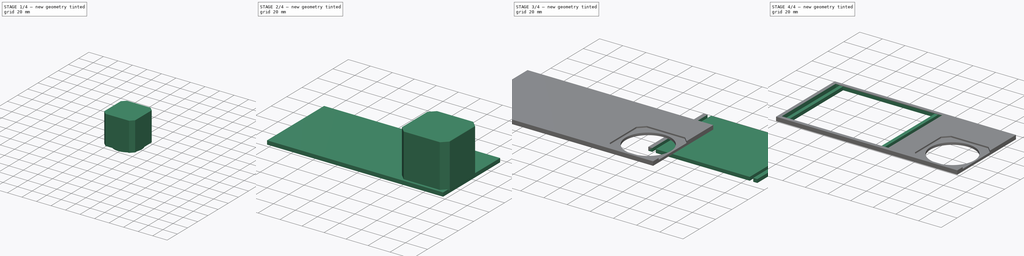
[diagram: build sequence overview — one tinted view per stage of 4, left to right]
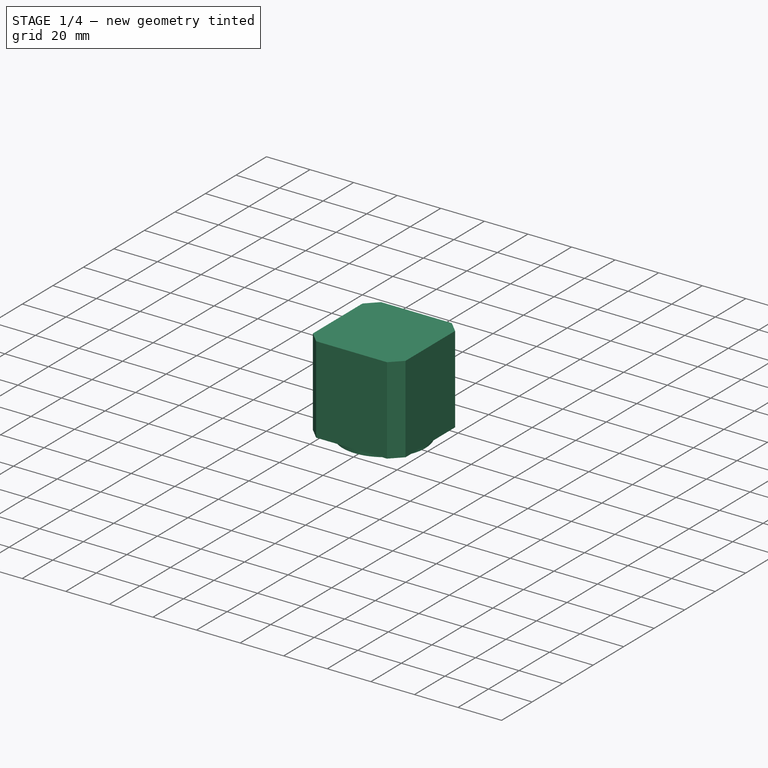
[diagram: stage 1 of 4 — iso view after this stage's code; geometry added in this stage tinted green]
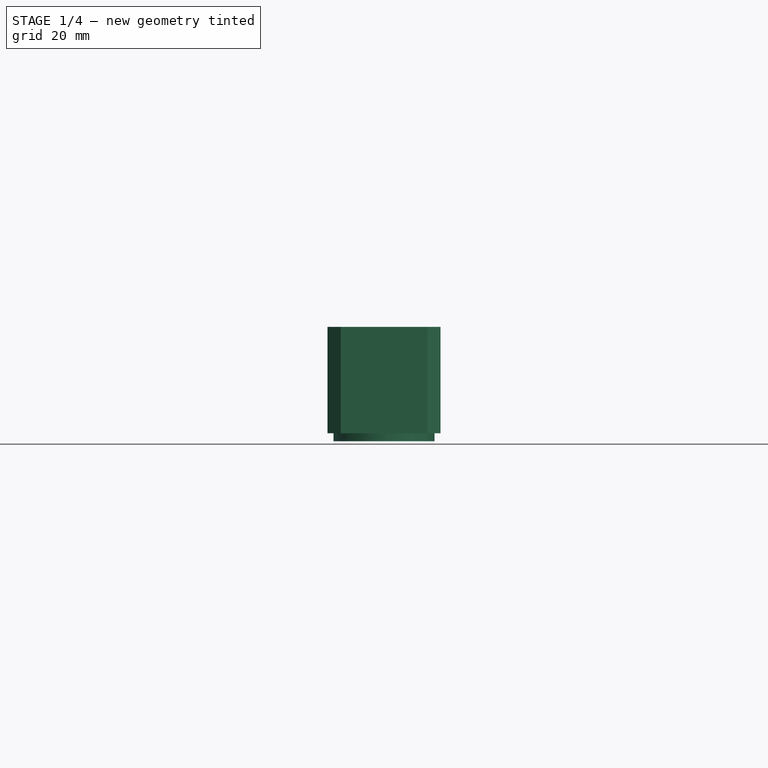
[diagram: stage 1 of 4 — front view after this stage's code; geometry added in this stage tinted green]
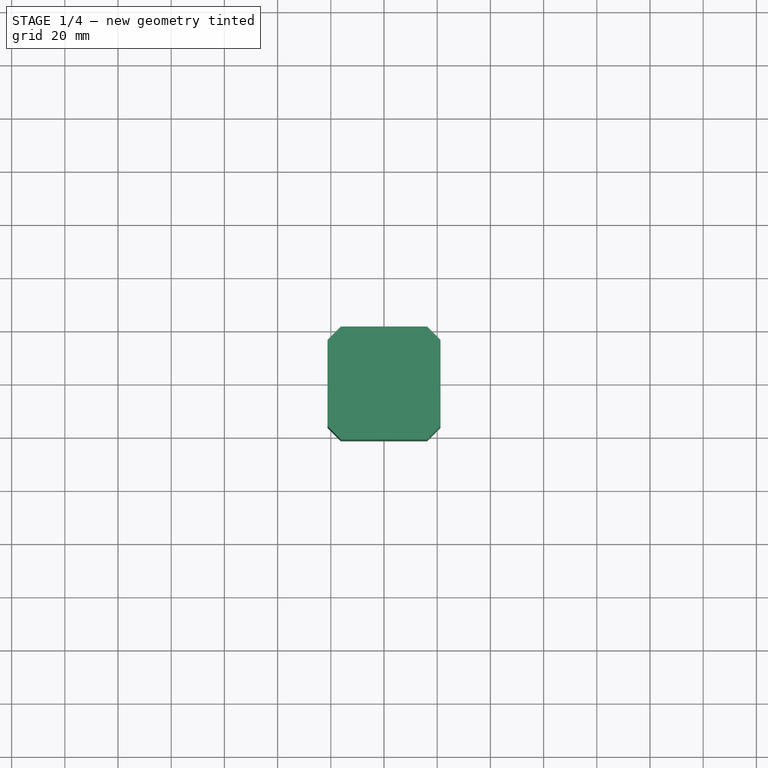
[diagram: stage 1 of 4 — top view after this stage's code; geometry added in this stage tinted green]
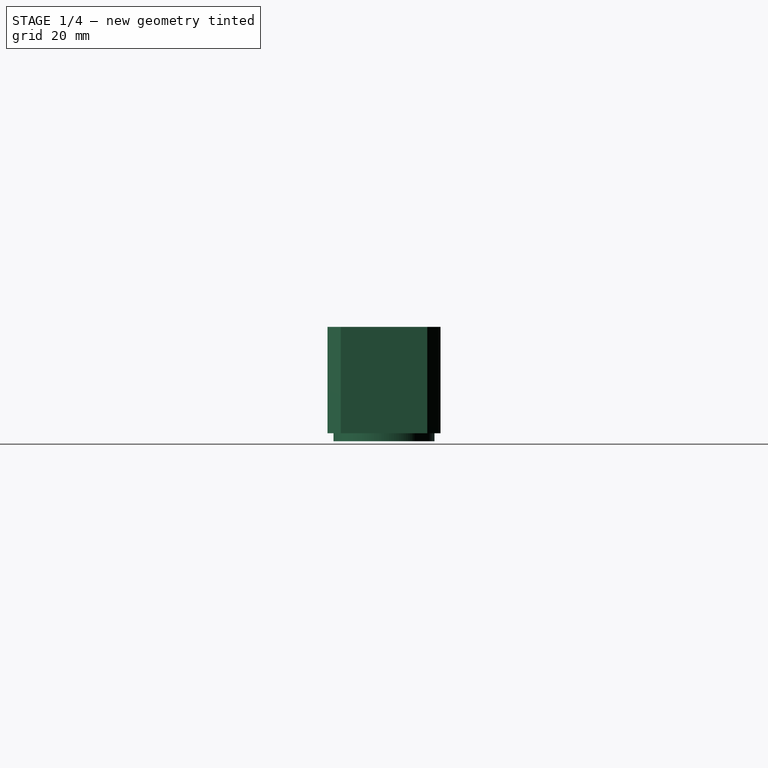
[diagram: stage 1 of 4 — right view after this stage's code; geometry added in this stage tinted green]
FCSTD DOCUMENT  (FreeCAD 0.16R6700 (Git))
Label: OctoprintBed
License: CreativeCommons Attribution-ShareAlike
LicenseURL: http://creativecommons.org/licenses/by-sa/4.0/
objects: Sketcher::SketchObject×3, Part::Box×2, Part::MultiFuse×2, PartDesign::Pad×2, Part::Cut×2, Part::Extrusion×1, Part::Offset×1
note: 15 computed .brp shape members not serialized (recipe doc carries the construction recipe); baked Part::Feature solids carry a one-line shape summary decoded from their .brp

FEATURE [Sketcher::SketchObject] Sketch001
  Placement = pos=(0,0,2.5) rot=(0,0,1;0rad)
  sketch-geometry (8):
    g0: LineSegment StartX=-21.25 StartY=-16.25 StartZ=0 EndX=-21.25 EndY=16.25 EndZ=0
    g1: LineSegment StartX=-21.25 StartY=16.25 StartZ=0 EndX=-16.25 EndY=21.25 EndZ=0
    g2: LineSegment StartX=-16.25 StartY=21.25 StartZ=0 EndX=16.25 EndY=21.25 EndZ=0
    g3: LineSegment StartX=16.25 StartY=21.25 StartZ=0 EndX=21.25 EndY=16.25 EndZ=0
    g4: LineSegment StartX=21.25 StartY=16.25 StartZ=0 EndX=21.25 EndY=-16.25 EndZ=0
    g5: LineSegment StartX=21.25 StartY=-16.25 StartZ=0 EndX=16.25 EndY=-21.25 EndZ=0
    g6: LineSegment StartX=16.25 StartY=-21.25 StartZ=0 EndX=-16.25 EndY=-21.25 EndZ=0
    g7: LineSegment StartX=-16.25 StartY=-21.25 StartZ=0 EndX=-21.25 EndY=-16.25 EndZ=0
  constraints (26):
    c: Vertical(g0)
    c: Coincident(g0,g1)
    c: Coincident(g1,g2)
    c: Horizontal(g2)
    c: Coincident(g2,g3)
    c: Coincident(g3,g4)
    c: Vertical(g4)
    c: Coincident(g4,g5)
    c: Coincident(g5,g6)
    c: Horizontal(g6)
    c: Coincident(g6,g7)
    c: Coincident(g7,g0)
    c: Equal(g1,g3)
    c: Equal(g3,g5)
    c: Equal(g5,g7)
    c: Equal(g0,g2)
    c: Equal(g2,g4)
    c: Equal(g4,g6)
    c: Symmetric(g1,g6,g-1)
    c: Symmetric(g0,g3,g-2)
    c: DistanceX(g0,g3) = 42.5
    c: DistanceX(g2,g3) = 5
    c: Equal(g2,g4)
    c: Equal(g4,g0)
    c: Equal(g0,g6)
    c: Angle(g3,g4) = 2.35619
FEATURE [PartDesign::Pad] Pad  label="NEMA 17 Base"
  Length = 40
  Length2 = 100
  Placement = pos=(0,0,2.5) rot=(0,0,1;0rad)
  Sketch = -> Sketch001
  Type = 0
FEATURE [Sketcher::SketchObject] Sketch002
  Placement = pos=(0,0,2.5) rot=(1,0,0;3.14159rad)
  Support = -> Pad [Face9]
  sketch-geometry (1):
    g0: Circle CenterX=0 CenterY=0 CenterZ=0 NormalX=0 NormalY=0 NormalZ=1 Radius=19
  constraints (2):
    c: Coincident(g0,g-1)
    c: Radius(g0) = 19
FEATURE [PartDesign::Pad] Pad001
  Length = 3
  Length2 = 100
  Placement = pos=(0,0,2.5) rot=(0,0,1;0rad)
  Sketch = -> Sketch002
  Type = 0
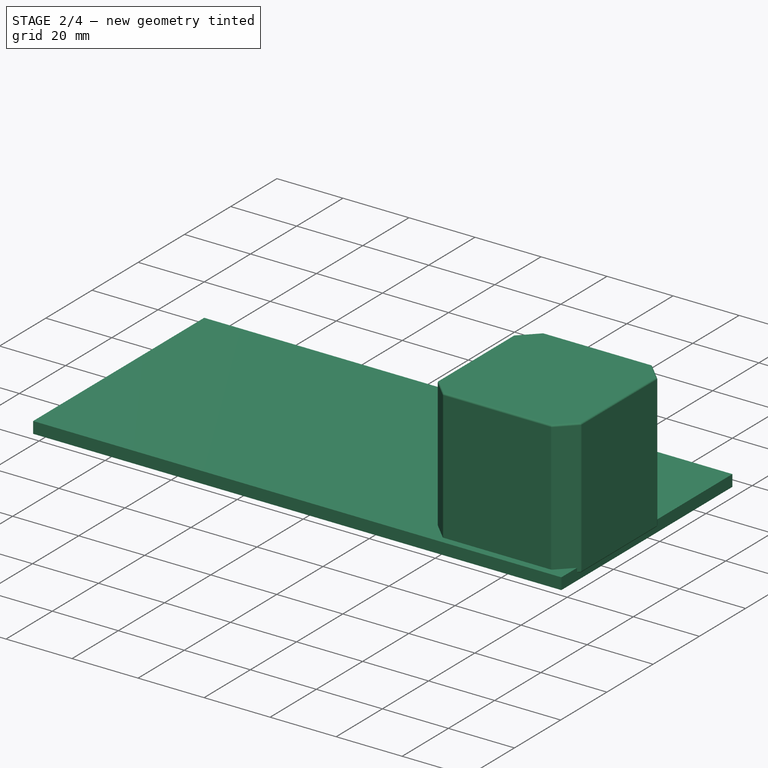
[diagram: stage 2 of 4 — iso view after this stage's code; geometry added in this stage tinted green]
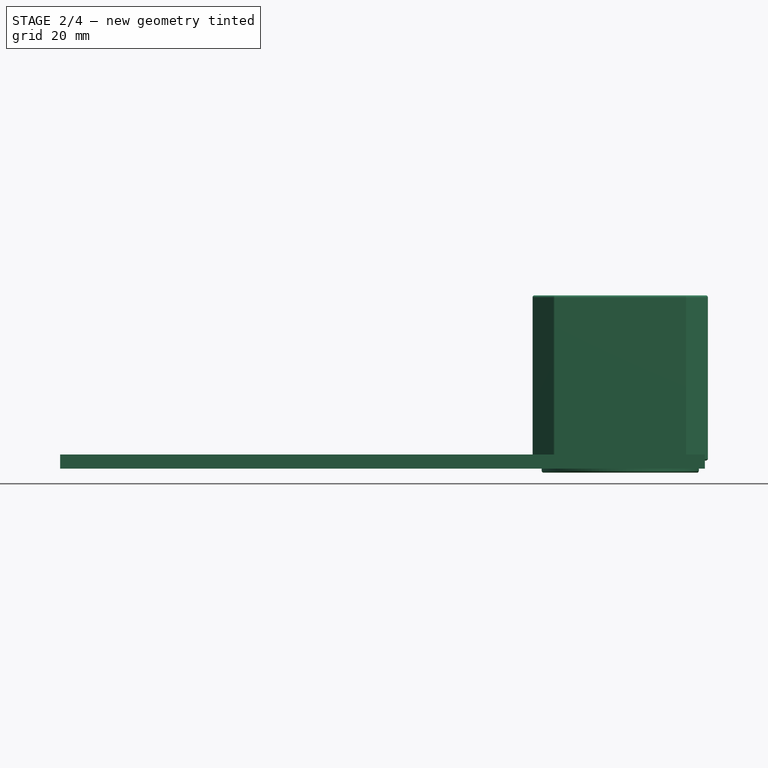
[diagram: stage 2 of 4 — front view after this stage's code; geometry added in this stage tinted green]
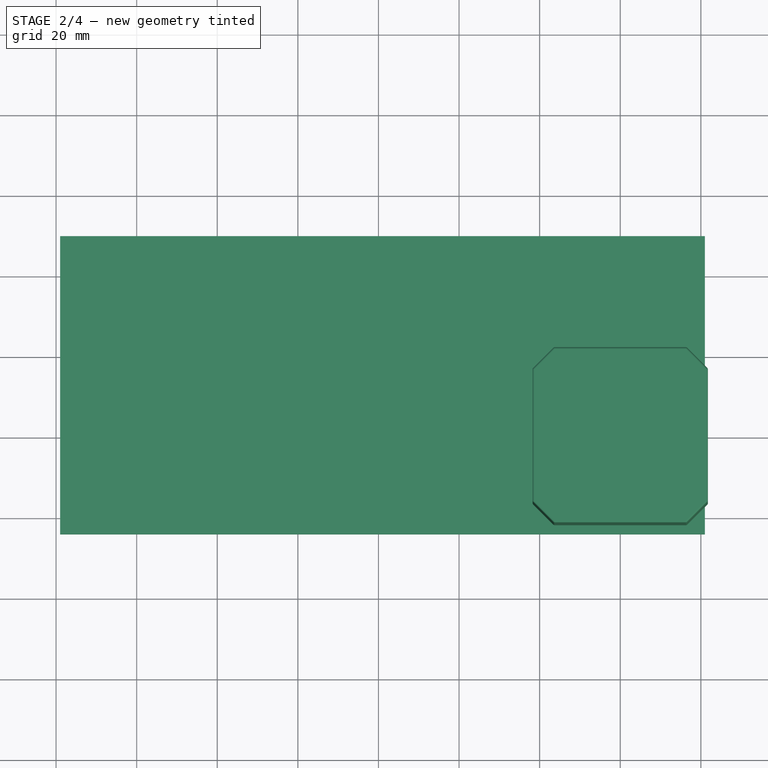
[diagram: stage 2 of 4 — top view after this stage's code; geometry added in this stage tinted green]
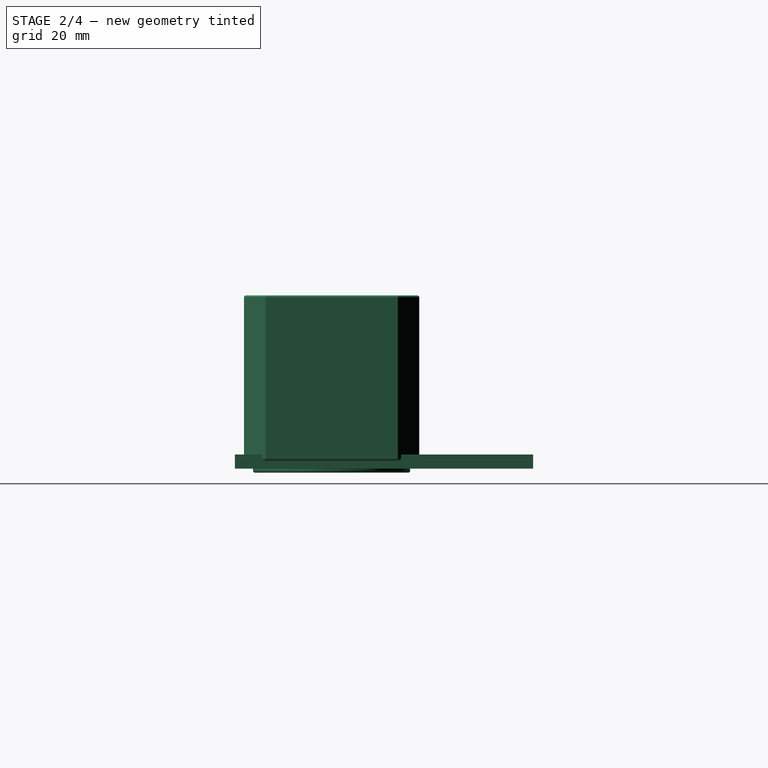
[diagram: stage 2 of 4 — right view after this stage's code; geometry added in this stage tinted green]
FEATURE [Part::Box] Box001  label="Base"
  Height = 3.5
  Length = 160
  Placement = pos=(-139,-24,0) rot=(0,0,1;0rad)
  Width = 74
FEATURE [Part::MultiFuse] Fusion001  label="NEMA 17"
  Shapes = -> [Pad,Pad001]
FEATURE [Part::Offset] Offset
  Fill = false
  Intersection = false
  Join = 0
  Mode = 0
  SelfIntersection = false
  Source = -> Fusion001
  Value = 0.5
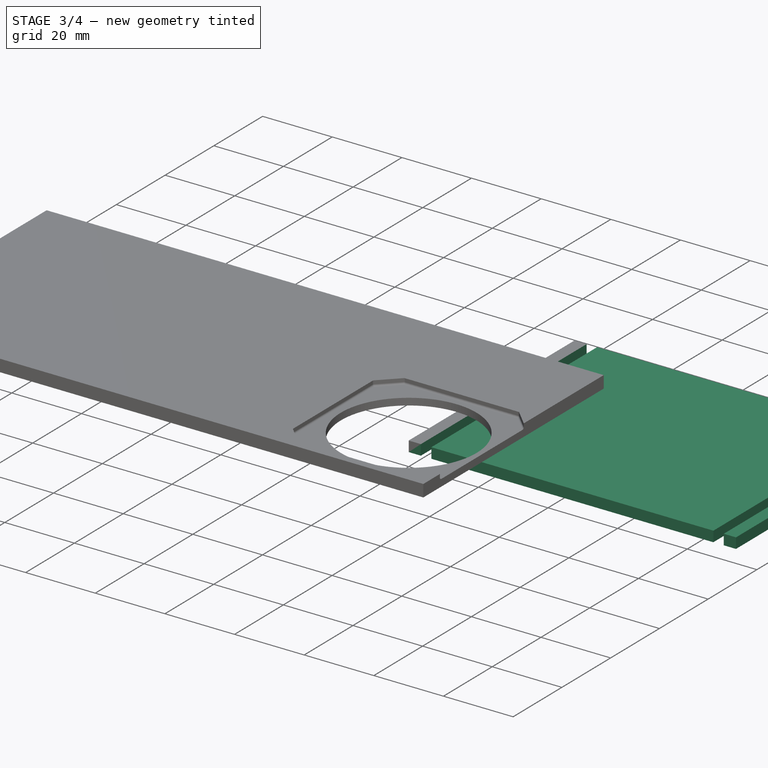
[diagram: stage 3 of 4 — iso view after this stage's code; geometry added in this stage tinted green]
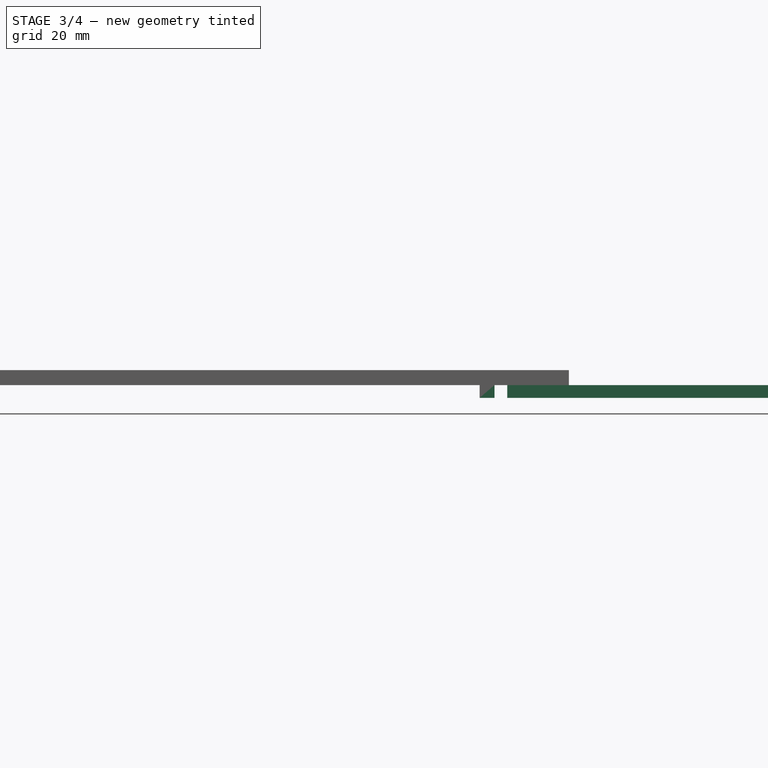
[diagram: stage 3 of 4 — front view after this stage's code; geometry added in this stage tinted green]
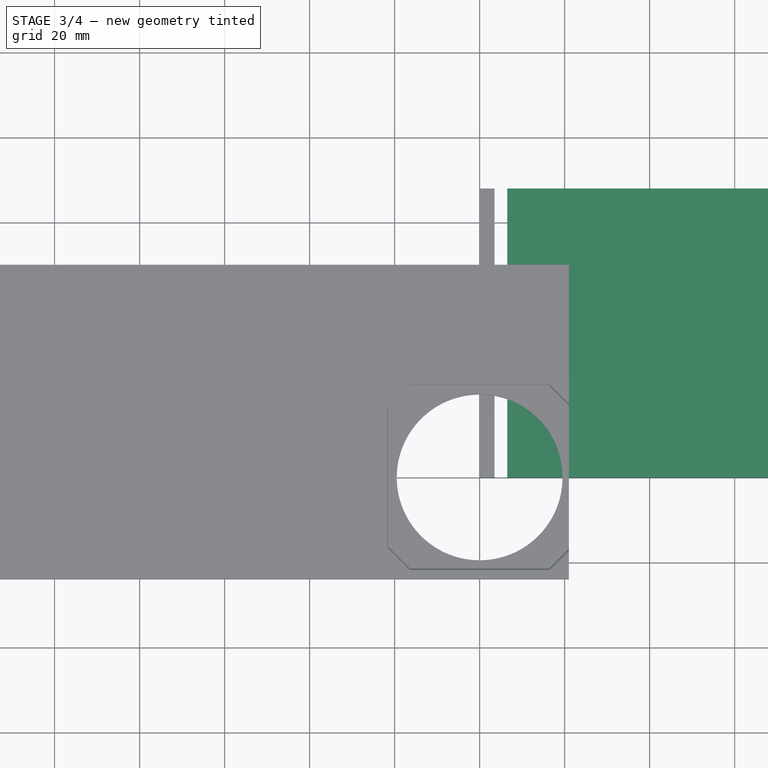
[diagram: stage 3 of 4 — top view after this stage's code; geometry added in this stage tinted green]
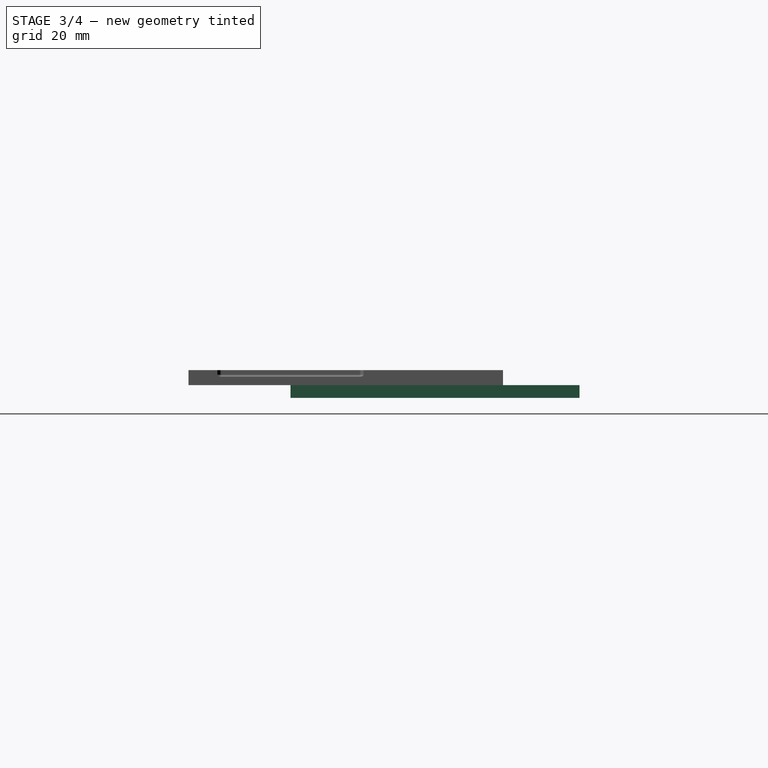
[diagram: stage 3 of 4 — right view after this stage's code; geometry added in this stage tinted green]
FEATURE [Part::Box] Box  label="RPBody"
  Height = 31.5
  Length = 94
  Width = 68
FEATURE [Sketcher::SketchObject] Sketch
  ExternalGeometry = -> [Box]
  Placement = pos=(0,0,0) rot=(1,0,0;3.14159rad)
  Support = -> Box [Face5]
  sketch-geometry (12):
    g0: LineSegment StartX=3.5 StartY=-68 StartZ=0 EndX=0 EndY=-68 EndZ=0
    g1: LineSegment StartX=0 StartY=-68 StartZ=0 EndX=0 EndY=0 EndZ=0
    g2: LineSegment StartX=0 StartY=0 StartZ=0 EndX=3.5 EndY=0 EndZ=0
    g3: LineSegment StartX=3.5 StartY=0 StartZ=0 EndX=3.5 EndY=-68 EndZ=0
    g4: LineSegment StartX=90.5 StartY=0 StartZ=0 EndX=94 EndY=0 EndZ=0
    g5: LineSegment StartX=94 StartY=0 StartZ=0 EndX=94 EndY=-68 EndZ=0
    g6: LineSegment StartX=94 StartY=-68 StartZ=0 EndX=90.5 EndY=-68 EndZ=0
    g7: LineSegment StartX=90.5 StartY=-68 StartZ=0 EndX=90.5 EndY=0 EndZ=0
    g8: LineSegment StartX=6.5 StartY=0 StartZ=0 EndX=87.5 EndY=0 EndZ=0
    g9: LineSegment StartX=87.5 StartY=0 StartZ=0 EndX=87.5 EndY=-68 EndZ=0
    g10: LineSegment StartX=87.5 StartY=-68 StartZ=0 EndX=6.5 EndY=-68 EndZ=0
    g11: LineSegment StartX=6.5 StartY=-68 StartZ=0 EndX=6.5 EndY=0 EndZ=0
  constraints (34):
    c: Coincident(g0,g1)
    c: Coincident(g1,g2)
    c: Coincident(g2,g3)
    c: Coincident(g3,g0)
    c: Horizontal(g0)
    c: Horizontal(g2)
    c: Vertical(g1)
    c: Vertical(g3)
    c: Coincident(g1,g-1)
    c: Coincident(g0,g-5)
    c: DistanceX(g-1,g2) = 3.5
    c: Coincident(g4,g5)
    c: Coincident(g5,g6)
    c: Coincident(g6,g7)
    c: Coincident(g7,g4)
    c: Horizontal(g4)
    c: Horizontal(g6)
    c: Vertical(g5)
    c: Vertical(g7)
    c: Coincident(g4,g-6)
    c: Coincident(g5,g-6)
    c: DistanceX(g4,g4) = 3.5
    c: Coincident(g8,g9)
    c: Coincident(g9,g10)
    c: Coincident(g10,g11)
    c: Coincident(g11,g8)
    c: Horizontal(g8)
    c: Horizontal(g10)
    c: Vertical(g9)
    c: Vertical(g11)
    c: PointOnObject(g8,g-4)
    c: PointOnObject(g10,g-5)
    c: DistanceX(g2,g8) = 3
    c: DistanceX(g8,g4) = 3
FEATURE [Part::Extrusion] Extrude
  Base = -> Sketch
  Dir = (0,0,-3)
  Solid = true
FEATURE [Part::Cut] Cut
  Base = -> Box001
  Tool = -> Offset
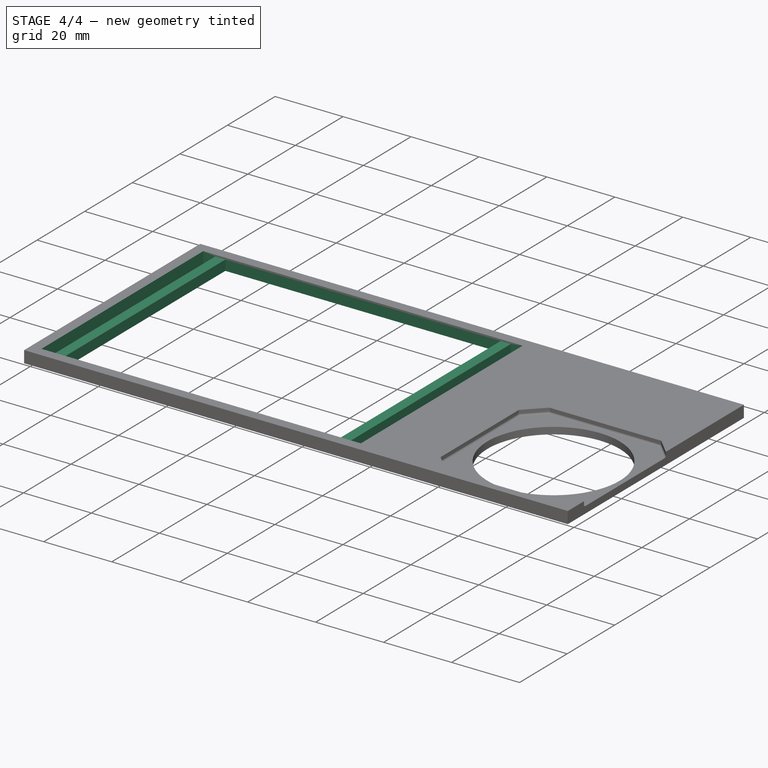
[diagram: stage 4 of 4 — iso view after this stage's code; geometry added in this stage tinted green]
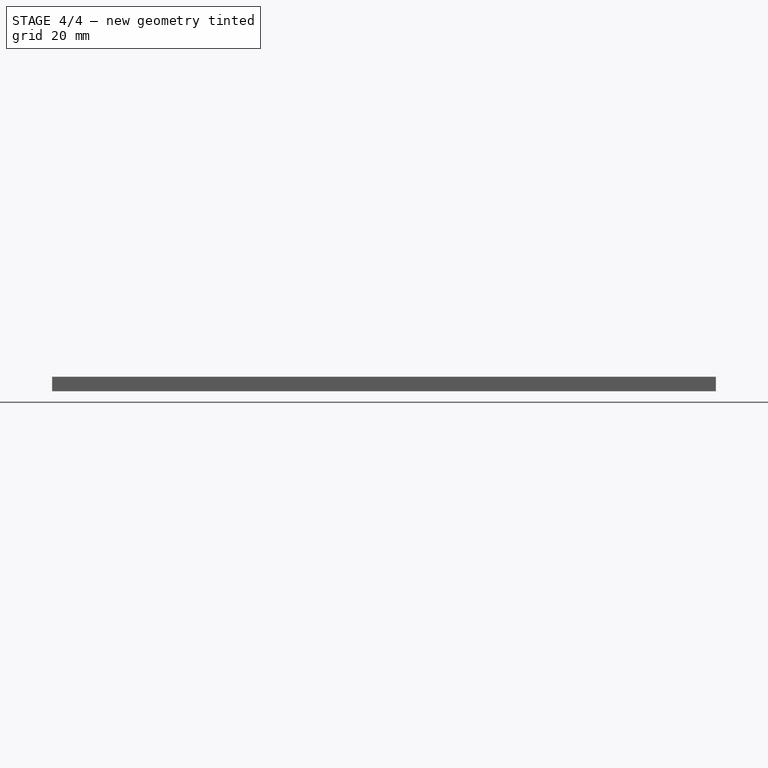
[diagram: stage 4 of 4 — front view after this stage's code; geometry added in this stage tinted green]
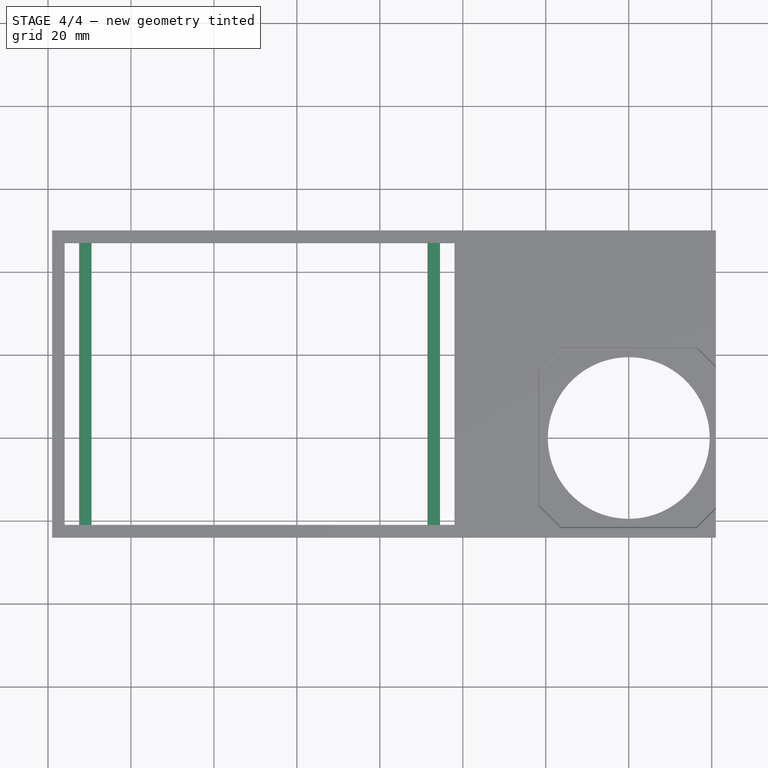
[diagram: stage 4 of 4 — top view after this stage's code; geometry added in this stage tinted green]
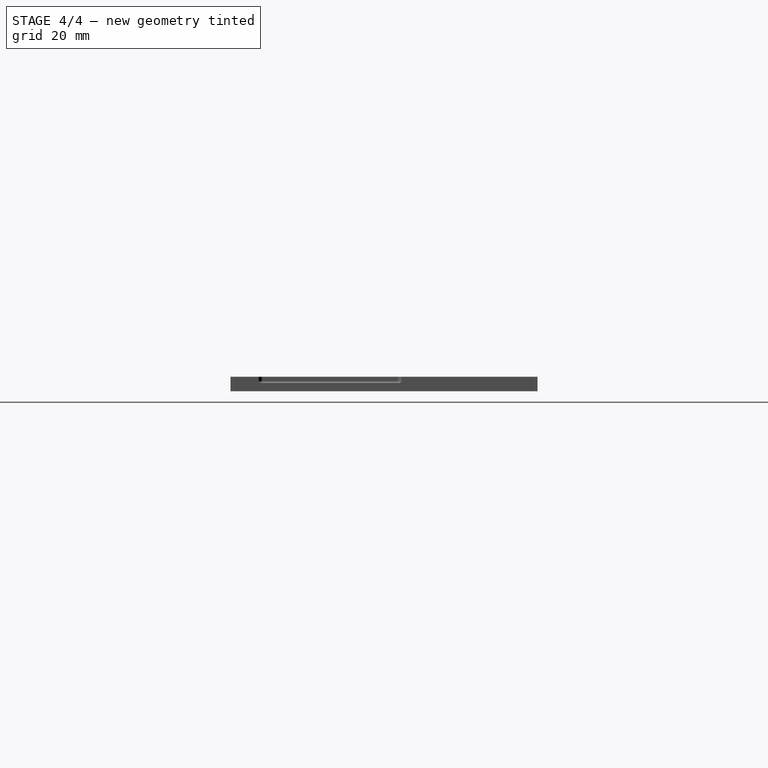
[diagram: stage 4 of 4 — right view after this stage's code; geometry added in this stage tinted green]
FEATURE [Part::MultiFuse] Fusion  label="RP"
  Placement = pos=(-136,-21,3) rot=(0,0,1;0rad)
  Shapes = -> [Box,Extrude]
FEATURE [Part::Cut] Cut001  label="OctoprintBed"
  Base = -> Cut
  Tool = -> Fusion
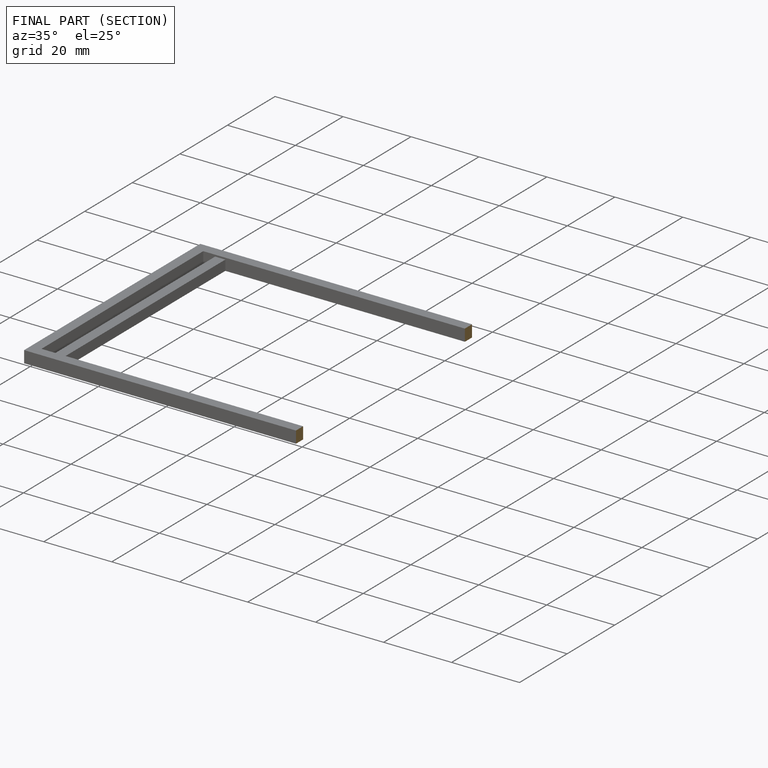
[diagram: finished part — half-section view (interior)]
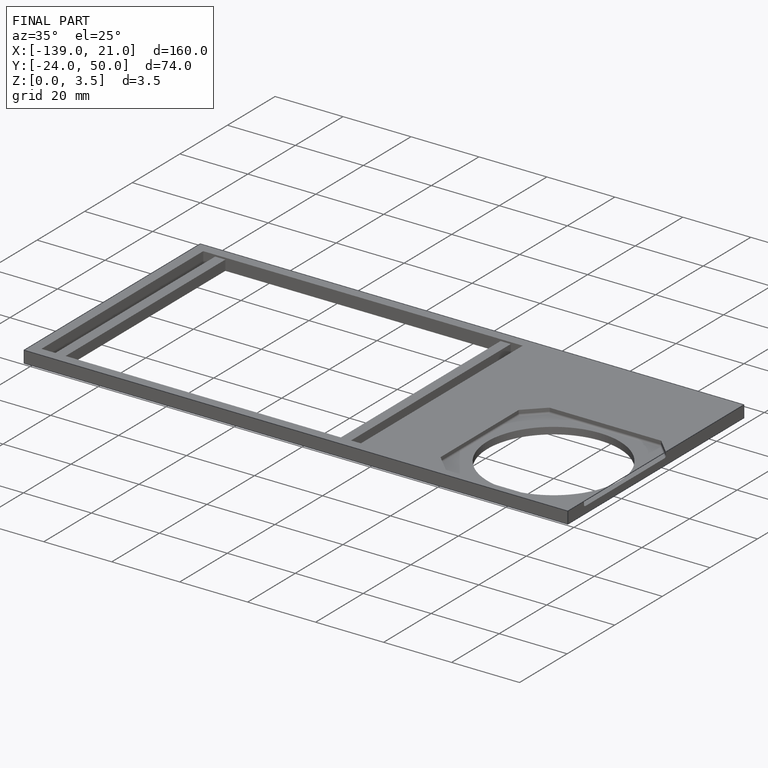
[diagram: finished part — iso view with bounding-box wireframe]
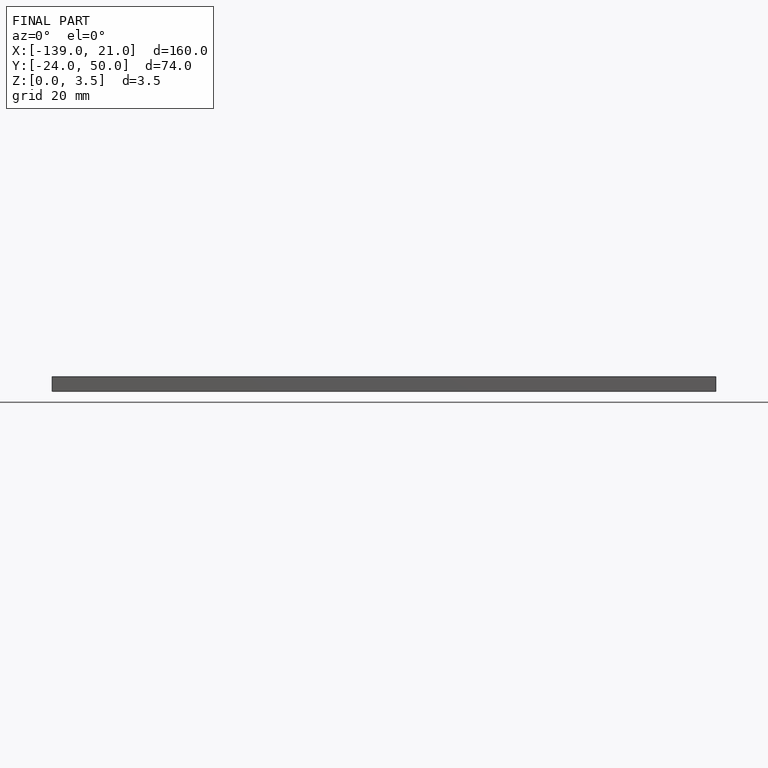
[diagram: finished part — front view with bounding-box wireframe]
